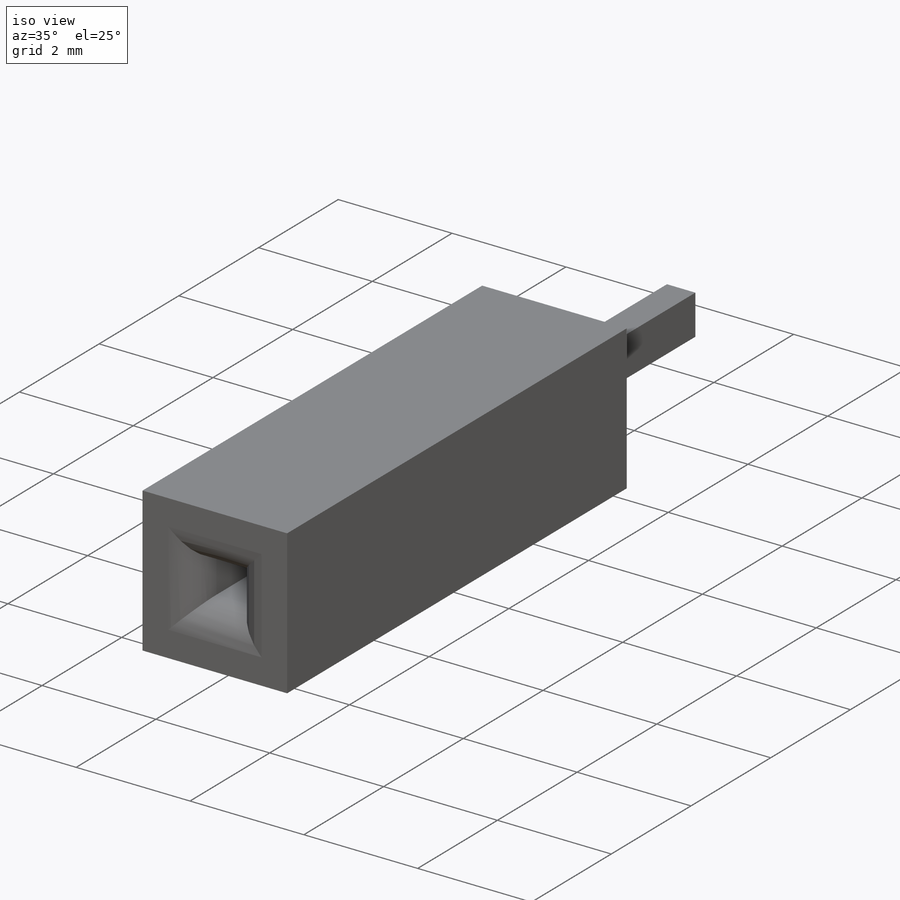
[diagram: iso view]
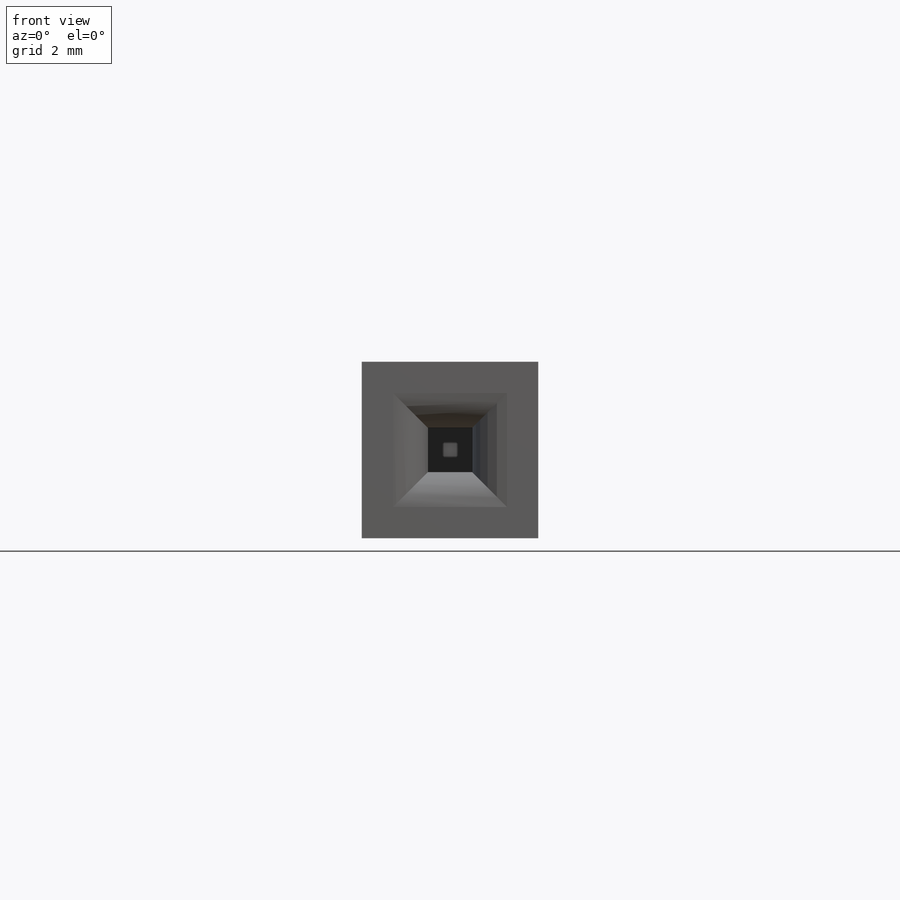
[diagram: front view]
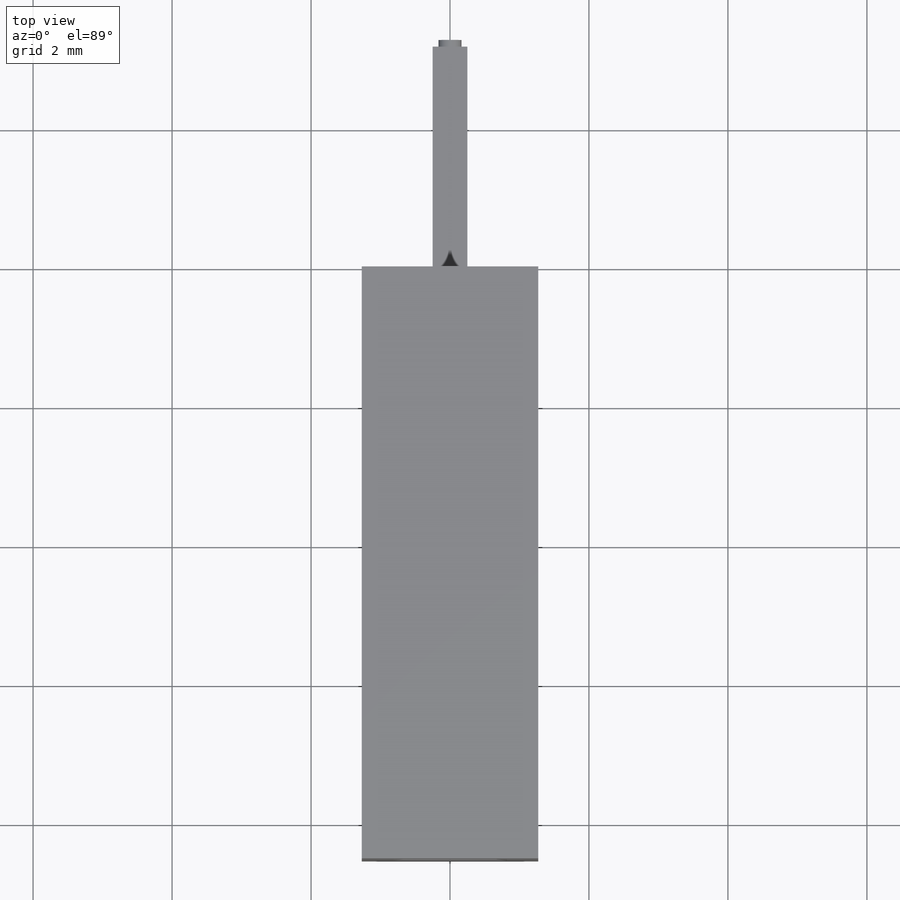
[diagram: top view]
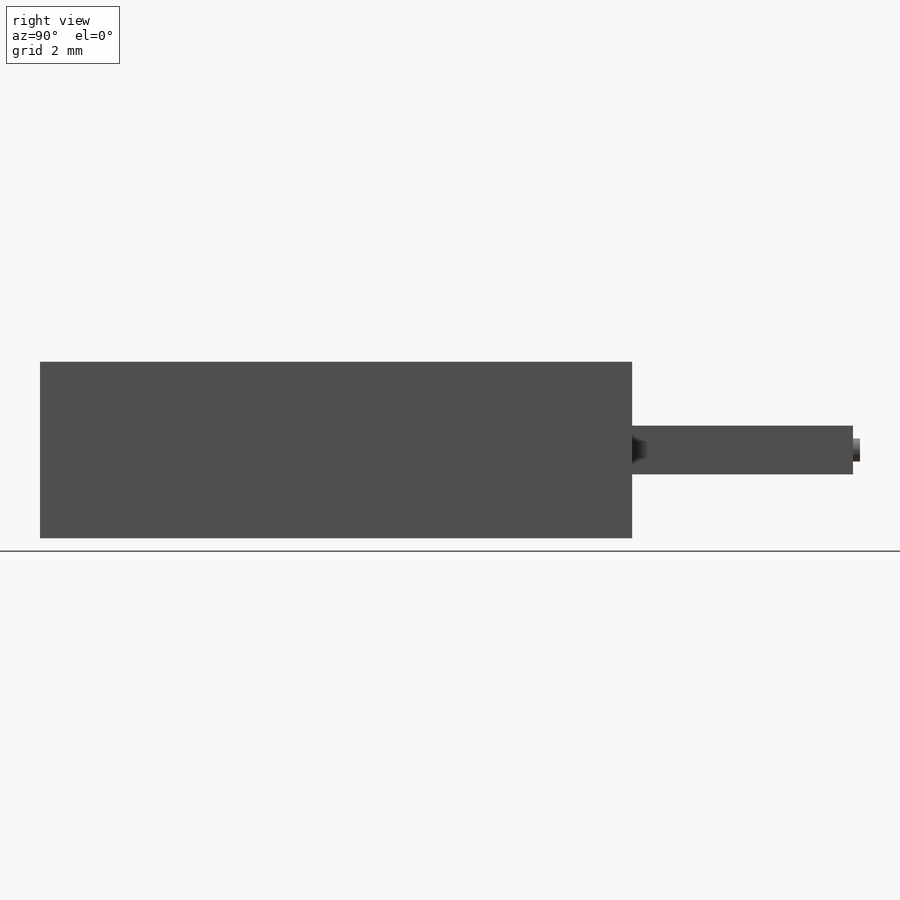
[diagram: right view]
SOLIDWORKS PART (.sldprt)
format: sldprt  version: not decoded by parser v0  size: 184,832 bytes
history: native  units: mm
features: sketch x5, extrude x3, cut_extrude x2, material x1, fillet x1 (+11 scaffold rows collapsed)
feature tree (23):
  scaffold x11  (default folders/planes/origin — collapsed)
  material  "Material <not specified>"
  sketch  "Sketch1"  dims[D1=2.54mm D2=2.54mm]
  extrude  "Boss-Extrude1"  Depth=8.52mm
  sketch  "Sketch2"  dims[D1=0.64mm D2=0.64mm]
  cut_extrude  "Cut-Extrude1"  Depth=6.5mm
  fillet  "Fillet1"  Radius=0.5mm
  sketch  "Sketch4"  dims[D1=0.5mm D2=0.7mm]
  extrude  "Boss-Extrude2"  Depth=3.18mm
  sketch  "Sketch5"  dims[D1=0.51mm]
  cut_extrude  "Cut-Extrude4"  Depth=0.26mm
  sketch  "Sketch6"
  extrude  "Boss-Extrude3"  Depth=0.1mm
decode coverage: 10 of 11 modeling features carry decoded parameters
note: suppression state not decoded; provenance and decode notes live in map.json
